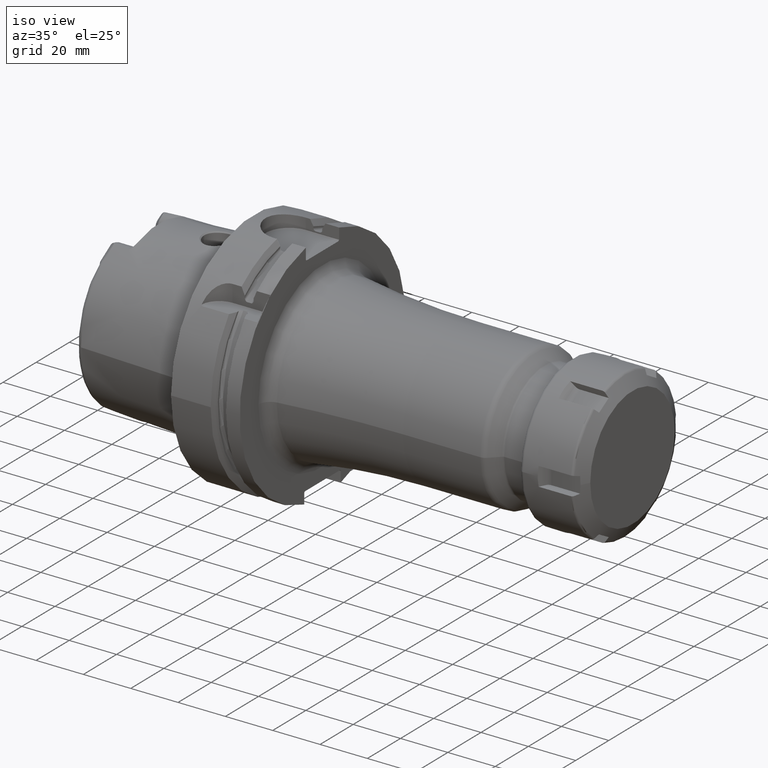
[diagram: clean part render]
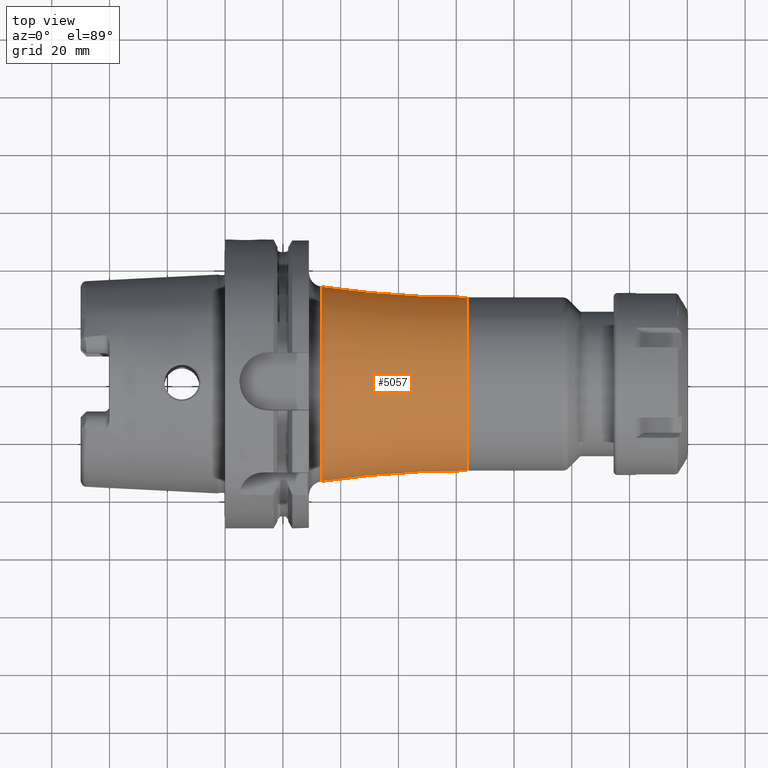
[diagram: tour spotlight — one face highlighted and labeled with its STEP entity id]
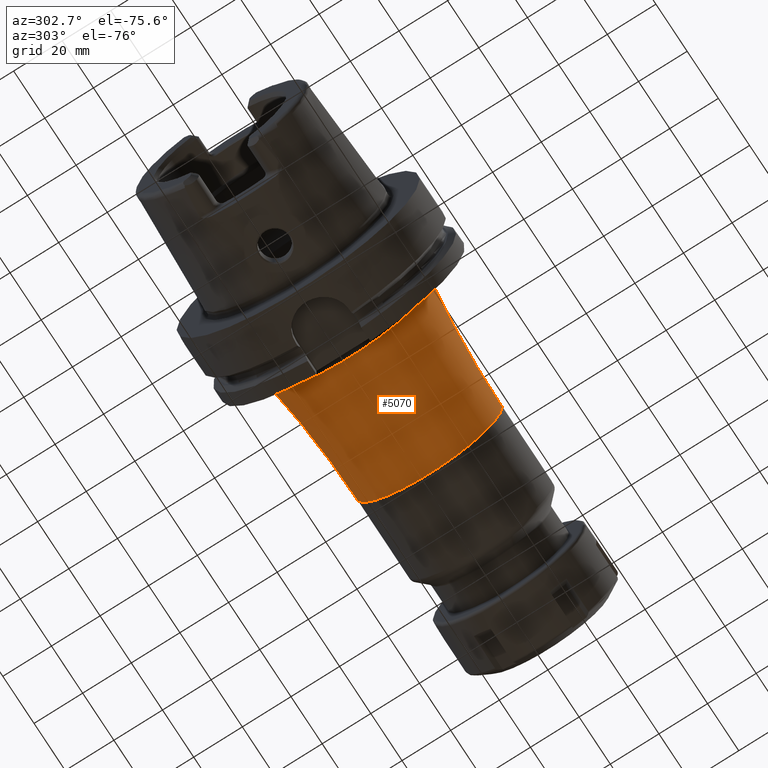
[diagram: tour spotlight — one face highlighted and labeled with its STEP entity id]
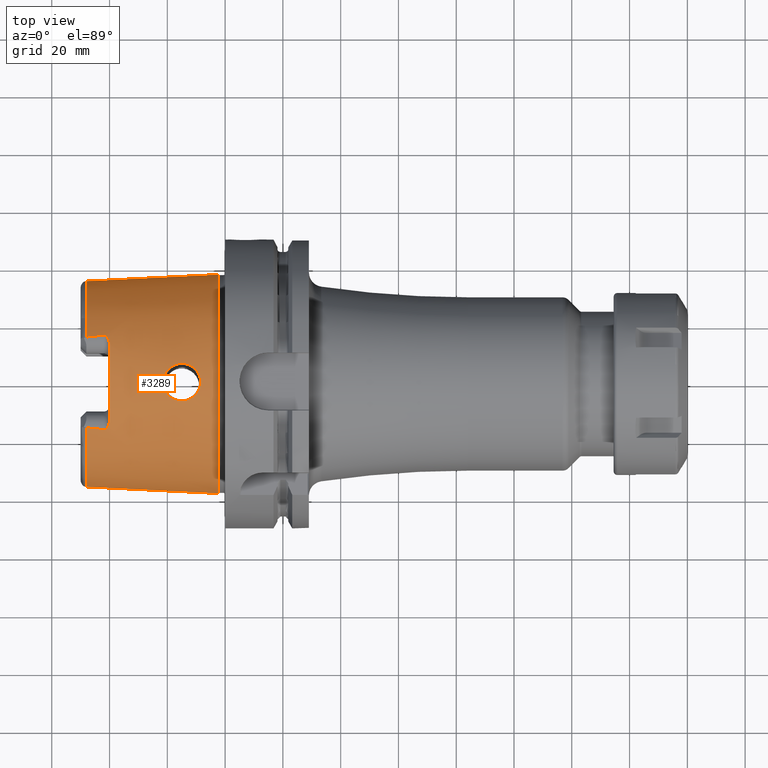
[diagram: tour spotlight — one face highlighted and labeled with its STEP entity id]
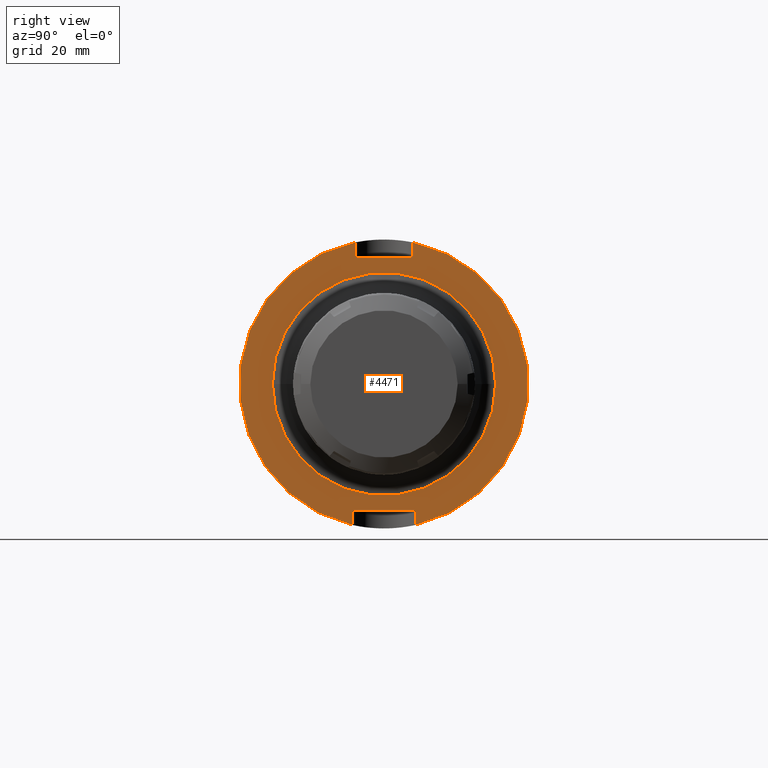
[diagram: tour spotlight — one face highlighted and labeled with its STEP entity id]
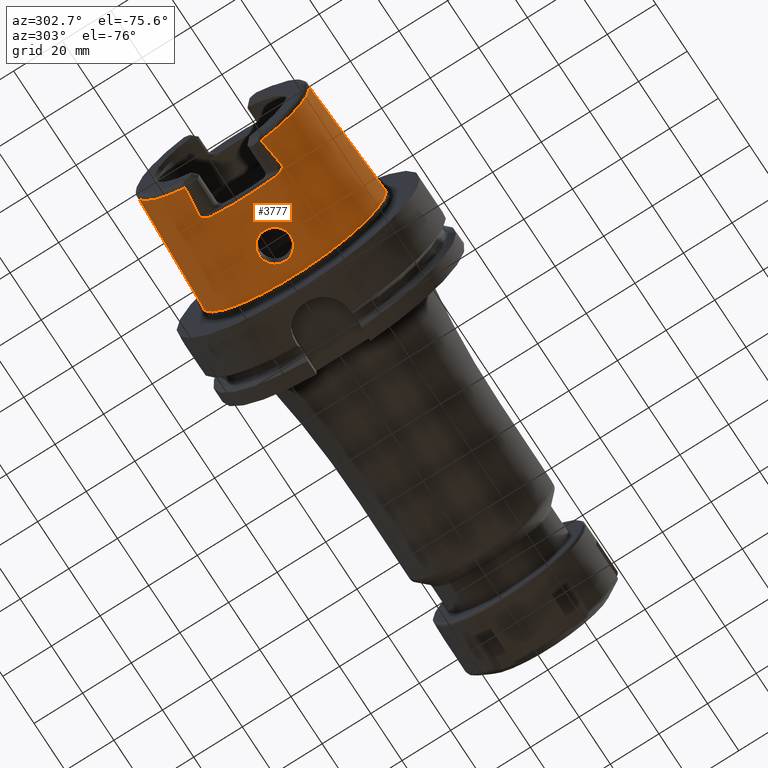
[diagram: tour spotlight — one face highlighted and labeled with its STEP entity id]
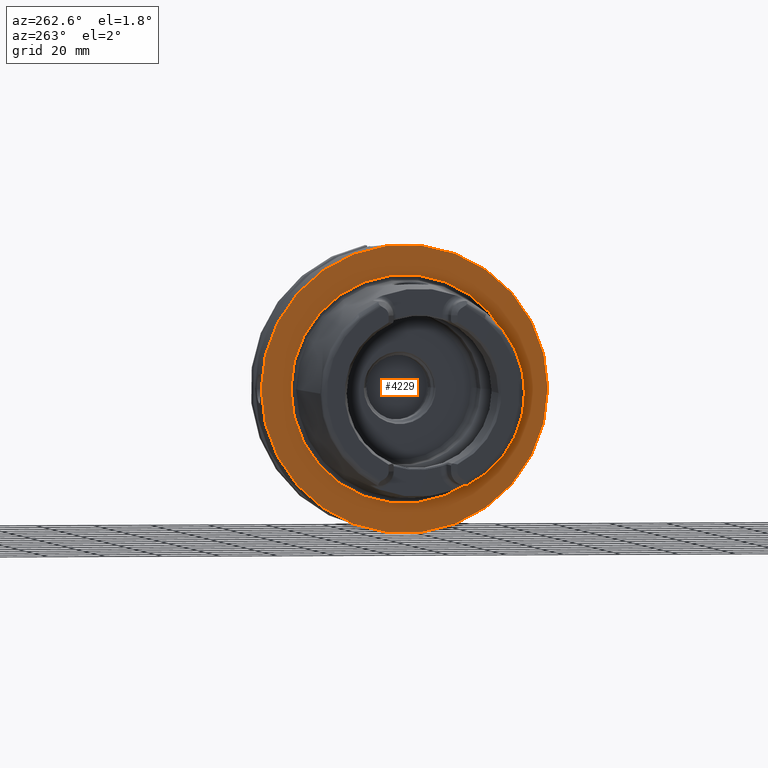
[diagram: tour spotlight — one face highlighted and labeled with its STEP entity id]
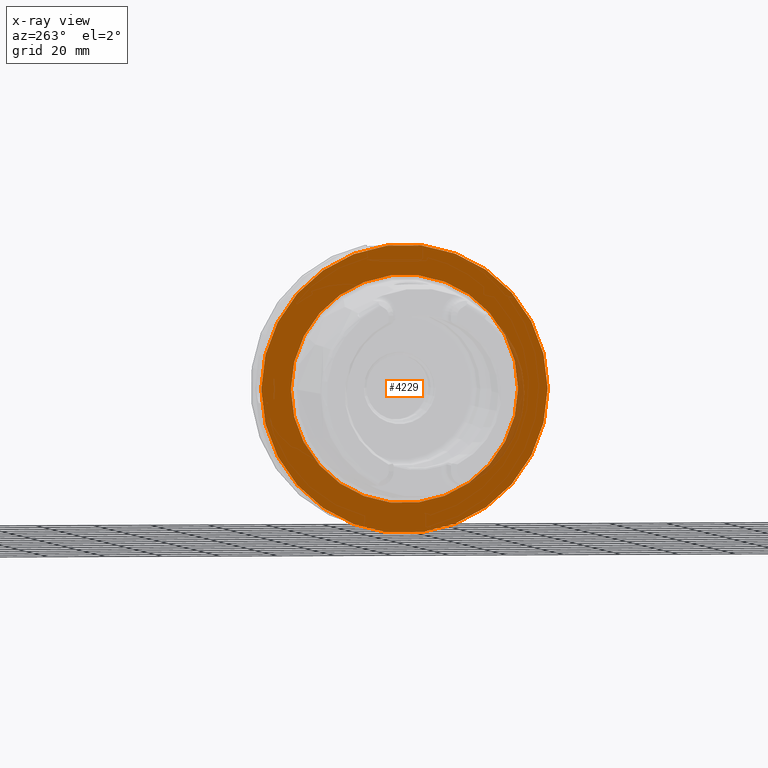
[diagram: x-ray of the same camera — body ghosted, this tour face saturated]
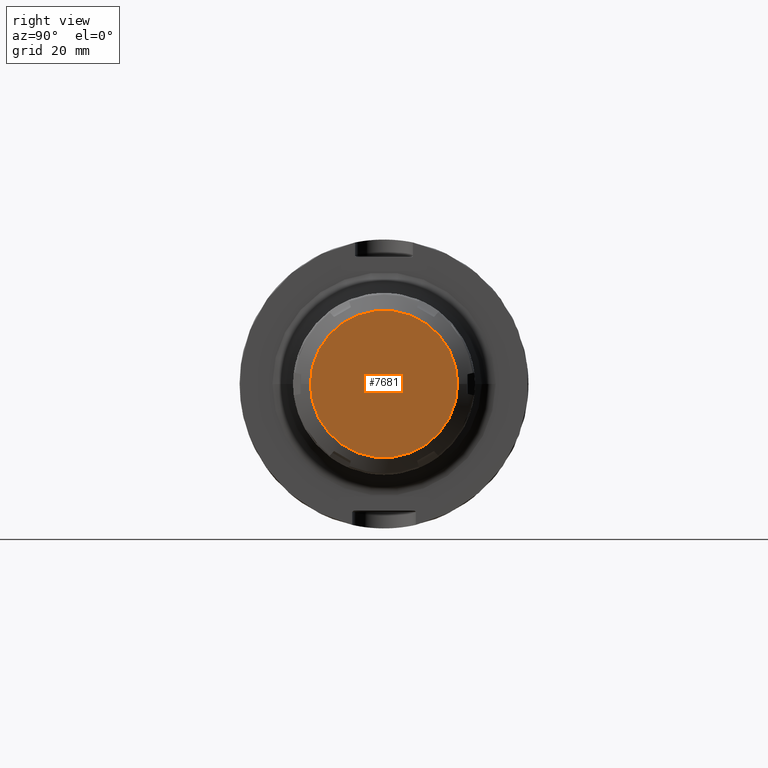
[diagram: tour spotlight — one face highlighted and labeled with its STEP entity id]
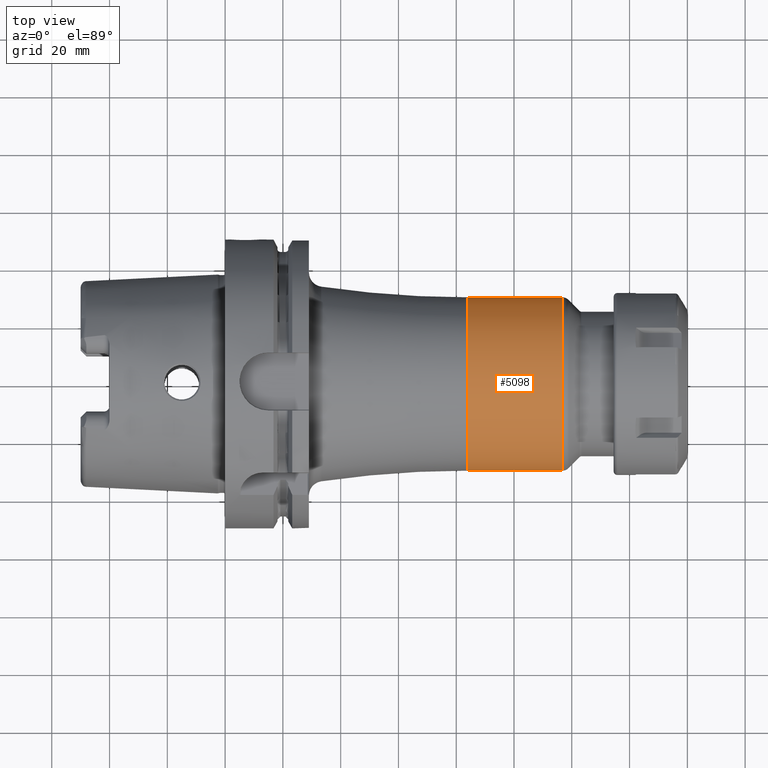
[diagram: tour spotlight — one face highlighted and labeled with its STEP entity id]
A machine part: a face-by-face anatomy tour. The part has 229 B-rep faces; the first image is the clean iso view, then the 8 largest visible faces are spotlighted one at a time (largest first), each with its STEP entity span.

Face 1 — top view, entity #5057. In plain terms, the highlighted toroidal blend (fillet) surface has major radius 380 mm and minor (blend) radius 350 mm.
Definition (entity closure, byte-faithful):
#1792=CARTESIAN_POINT('',(3.327536231884E1,0.E0,0.E0));
#1793=DIRECTION('',(1.E0,0.E0,0.E0));
#1794=DIRECTION('',(0.E0,1.E0,0.E0));
#1795=AXIS2_PLACEMENT_3D('',#1792,#1793,#1794);
#1797=CARTESIAN_POINT('',(8.4E1,3.8E2,4.653657836760E-14));
#1798=DIRECTION('',(0.E0,0.E0,-1.E0));
#1799=DIRECTION('',(0.E0,-1.E0,0.E0));
#1800=AXIS2_PLACEMENT_3D('',#1797,#1798,#1799);
#1807=CARTESIAN_POINT('',(8.4E1,-3.8E2,-9.307315673520E-14));
#1808=DIRECTION('',(0.E0,0.E0,1.E0));
#1809=DIRECTION('',(0.E0,1.E0,0.E0));
#1810=AXIS2_PLACEMENT_3D('',#1807,#1808,#1809);
#1830=CARTESIAN_POINT('',(8.4E1,0.E0,0.E0));
#1831=DIRECTION('',(1.E0,0.E0,0.E0));
#1832=DIRECTION('',(0.E0,1.E0,0.E0));
#1833=AXIS2_PLACEMENT_3D('',#1830,#1831,#1832);
#3240=CARTESIAN_POINT('',(8.4E1,3.E1,0.E0));
#3241=CARTESIAN_POINT('',(8.4E1,-3.E1,0.E0));
#3242=VERTEX_POINT('',#3240);
#3243=VERTEX_POINT('',#3241);
#3244=CARTESIAN_POINT('',(3.327536231884E1,3.369520486699E1,0.E0));
#3245=VERTEX_POINT('',#3244);
#3250=CARTESIAN_POINT('',(3.327536231884E1,-3.369520486699E1,0.E0));
#3251=VERTEX_POINT('',#3250);
#5043=CARTESIAN_POINT('',(8.4E1,0.E0,0.E0));
#5044=DIRECTION('',(1.E0,0.E0,0.E0));
#5045=DIRECTION('',(0.E0,-1.E0,0.E0));
#5046=AXIS2_PLACEMENT_3D('',#5043,#5044,#5045);
#5047=TOROIDAL_SURFACE('',#5046,3.8E2,3.5E2);
#5049=ORIENTED_EDGE('',*,*,#5048,.F.);
#5051=ORIENTED_EDGE('',*,*,#5050,.T.);
#5053=ORIENTED_EDGE('',*,*,#5052,.T.);
#5054=ORIENTED_EDGE('',*,*,#5037,.F.);
#5055=EDGE_LOOP('',(#5049,#5051,#5053,#5054));
#5056=FACE_OUTER_BOUND('',#5055,.F.);
#5057=ADVANCED_FACE('',(#5056),#5047,.F.);
#1796=CIRCLE('',#1795,3.369520486699E1);
#1801=CIRCLE('',#1800,3.5E2);
#1811=CIRCLE('',#1810,3.5E2);
#1834=CIRCLE('',#1833,3.E1);
#5037=EDGE_CURVE('',#3245,#3251,#1796,.T.);
#5048=EDGE_CURVE('',#3242,#3245,#1801,.T.);
#5050=EDGE_CURVE('',#3242,#3243,#1834,.T.);
#5052=EDGE_CURVE('',#3243,#3251,#1811,.T.);

Face 2 — auxiliary view, entity #5070. In plain terms, the highlighted toroidal blend (fillet) surface has major radius 380 mm and minor (blend) radius 350 mm.
Definition (entity closure, byte-faithful):
#1797=CARTESIAN_POINT('',(8.4E1,3.8E2,4.653657836760E-14));
#1798=DIRECTION('',(0.E0,0.E0,-1.E0));
#1799=DIRECTION('',(0.E0,-1.E0,0.E0));
#1800=AXIS2_PLACEMENT_3D('',#1797,#1798,#1799);
#1802=CARTESIAN_POINT('',(3.327536231884E1,0.E0,0.E0));
#1803=DIRECTION('',(1.E0,0.E0,0.E0));
#1804=DIRECTION('',(0.E0,-1.E0,0.E0));
#1805=AXIS2_PLACEMENT_3D('',#1802,#1803,#1804);
#1807=CARTESIAN_POINT('',(8.4E1,-3.8E2,-9.307315673520E-14));
#1808=DIRECTION('',(0.E0,0.E0,1.E0));
#1809=DIRECTION('',(0.E0,1.E0,0.E0));
#1810=AXIS2_PLACEMENT_3D('',#1807,#1808,#1809);
#1812=CARTESIAN_POINT('',(8.4E1,0.E0,0.E0));
#1813=DIRECTION('',(1.E0,0.E0,0.E0));
#1814=DIRECTION('',(0.E0,-1.E0,0.E0));
#1815=AXIS2_PLACEMENT_3D('',#1812,#1813,#1814);
#3240=CARTESIAN_POINT('',(8.4E1,3.E1,0.E0));
#3241=CARTESIAN_POINT('',(8.4E1,-3.E1,0.E0));
#3242=VERTEX_POINT('',#3240);
#3243=VERTEX_POINT('',#3241);
#3244=CARTESIAN_POINT('',(3.327536231884E1,3.369520486699E1,0.E0));
#3245=VERTEX_POINT('',#3244);
#3250=CARTESIAN_POINT('',(3.327536231884E1,-3.369520486699E1,0.E0));
#3251=VERTEX_POINT('',#3250);
#5058=CARTESIAN_POINT('',(8.4E1,0.E0,0.E0));
#5059=DIRECTION('',(1.E0,0.E0,0.E0));
#5060=DIRECTION('',(0.E0,-1.E0,0.E0));
#5061=AXIS2_PLACEMENT_3D('',#5058,#5059,#5060);
#5062=TOROIDAL_SURFACE('',#5061,3.8E2,3.5E2);
#5063=ORIENTED_EDGE('',*,*,#5048,.T.);
#5064=ORIENTED_EDGE('',*,*,#5023,.F.);
#5065=ORIENTED_EDGE('',*,*,#5052,.F.);
#5067=ORIENTED_EDGE('',*,*,#5066,.T.);
#5068=EDGE_LOOP('',(#5063,#5064,#5065,#5067));
#5069=FACE_OUTER_BOUND('',#5068,.F.);
#5070=ADVANCED_FACE('',(#5069),#5062,.F.);
#1801=CIRCLE('',#1800,3.5E2);
#1806=CIRCLE('',#1805,3.369520486699E1);
#1811=CIRCLE('',#1810,3.5E2);
#1816=CIRCLE('',#1815,3.E1);
#5023=EDGE_CURVE('',#3251,#3245,#1806,.T.);
#5048=EDGE_CURVE('',#3242,#3245,#1801,.T.);
#5052=EDGE_CURVE('',#3243,#3251,#1811,.T.);
#5066=EDGE_CURVE('',#3243,#3242,#1816,.T.);

Face 3 — top view, entity #3289. In plain terms, the highlighted conical surface has half-angle 2.868 deg.
Definition (entity closure, byte-faithful):
#2=CARTESIAN_POINT('',(-4.810007448473E1,-1.567653238626E1,3.196E1));
#3=CARTESIAN_POINT('',(-4.743649089753E1,-1.575202511592E1,3.196E1));
#4=CARTESIAN_POINT('',(-4.609985749196E1,-1.590320831227E1,3.196E1));
#5=CARTESIAN_POINT('',(-4.406668280177E1,-1.613055880919E1,3.196E1));
#6=CARTESIAN_POINT('',(-4.269206894520E1,-1.628254944441E1,3.196E1));
#7=CARTESIAN_POINT('',(-4.2E1,-1.635864758744E1,3.196E1));
#9=CARTESIAN_POINT('',(-4.E1,0.E0,0.E0));
#10=DIRECTION('',(1.E0,0.E0,0.E0));
#11=DIRECTION('',(0.E0,3.574556786365E-1,9.339301032789E-1));
#12=AXIS2_PLACEMENT_3D('',#9,#10,#11);
#14=CARTESIAN_POINT('',(-4.2E1,1.635864758744E1,3.196E1));
#15=CARTESIAN_POINT('',(-4.269204070145E1,1.628255255002E1,3.196E1));
#16=CARTESIAN_POINT('',(-4.406661691692E1,1.613056612298E1,3.196E1));
#17=CARTESIAN_POINT('',(-4.609979244919E1,1.590321563865E1,3.196E1));
#18=CARTESIAN_POINT('',(-4.743646302974E1,1.575202828631E1,3.196E1));
#19=CARTESIAN_POINT('',(-4.810007448473E1,1.567653238626E1,3.196E1));
#21=CARTESIAN_POINT('',(-2.5E0,0.E0,0.E0));
#22=DIRECTION('',(1.E0,0.E0,0.E0));
#23=DIRECTION('',(0.E0,1.E0,0.E0));
#24=AXIS2_PLACEMENT_3D('',#21,#22,#23);
#26=CARTESIAN_POINT('',(-2.149938207697E1,5.552926221647E-11,3.693037254664E1));
#27=CARTESIAN_POINT('',(-2.149947810722E1,2.456946967410E-1,3.693041400584E1));
#28=CARTESIAN_POINT('',(-2.146978943123E1,7.663421073483E-1,3.692663668754E1));
#29=CARTESIAN_POINT('',(-2.132902699242E1,1.552723327933E0,3.690919478302E1));
#30=CARTESIAN_POINT('',(-2.108091480959E1,2.342139536845E0,3.687974365394E1));
#31=CARTESIAN_POINT('',(-2.073440330363E1,3.094103832942E0,3.684140909161E1));
#32=CARTESIAN_POINT('',(-2.029456045373E1,3.796705318232E0,3.679744070735E1));
#33=CARTESIAN_POINT('',(-1.976895967621E1,4.437440706102E0,3.675180792921E1));
#34=CARTESIAN_POINT('',(-1.916766491360E1,5.004833501251E0,3.670884542936E1));
#35=CARTESIAN_POINT('',(-1.850089510031E1,5.490460623479E0,3.667275311991E1));
#36=CARTESIAN_POINT('',(-1.777939225152E1,5.887431777884E0,3.664739565010E1));
#37=CARTESIAN_POINT('',(-1.701424609593E1,6.190220322635E0,3.663607600264E1));
#38=CARTESIAN_POINT('',(-1.621758055837E1,6.394419176819E0,3.664131821143E1));
#39=CARTESIAN_POINT('',(-1.539955429301E1,6.497326105441E0,3.666474029556E1));
#40=CARTESIAN_POINT('',(-1.457114975166E1,6.496134002949E0,3.670710840669E1));
#41=CARTESIAN_POINT('',(-1.375127425398E1,6.390454994673E0,3.676745544266E1));
#42=CARTESIAN_POINT('',(-1.294983719070E1,6.181706493026E0,3.684404556607E1));
#43=CARTESIAN_POINT('',(-1.217938970715E1,5.872066509057E0,3.693403258601E1));
#44=CARTESIAN_POINT('',(-1.145343003562E1,5.466036101540E0,3.703341626103E1));
#45=CARTESIAN_POINT('',(-1.078465658031E1,4.970022940288E0,3.713742863004E1));
#46=CARTESIAN_POINT('',(-1.018517891880E1,4.392789013038E0,3.724075525816E1));
#47=CARTESIAN_POINT('',(-9.665388344352E0,3.744837411386E0,3.733802077293E1));
#48=CARTESIAN_POINT('',(-9.234092519568E0,3.038687491876E0,3.742410507514E1));
#49=CARTESIAN_POINT('',(-8.897351452215E0,2.287331206380E0,3.749468513875E1));
#50=CARTESIAN_POINT('',(-8.658527750933E0,1.501792221622E0,3.754652778726E1));
#51=CARTESIAN_POINT('',(-8.527369438248E0,7.337668322055E-1,3.757562813366E1));
#52=CARTESIAN_POINT('',(-8.500550849541E0,2.307484502453E-1,3.758164606668E1));
#53=CARTESIAN_POINT('',(-8.500618238409E0,-3.201212427053E-11,
3.758161093072E1));
#55=CARTESIAN_POINT('',(-8.500618238409E0,-3.201212427053E-11,
3.758161093072E1));
#56=CARTESIAN_POINT('',(-8.500529243712E0,-2.424312186462E-1,3.758165761842E1));
#57=CARTESIAN_POINT('',(-8.529377584627E0,-7.570713761110E-1,3.757517365272E1));
#58=CARTESIAN_POINT('',(-8.666699960505E0,-1.535920192154E0,3.754473037167E1));
#59=CARTESIAN_POINT('',(-8.909712492800E0,-2.320075305293E0,3.749204213674E1));
#60=CARTESIAN_POINT('',(-9.250504215006E0,-3.069650750447E0,3.742074072411E1));
#61=CARTESIAN_POINT('',(-9.685687617568E0,-3.773592271729E0,3.733408895737E1));
#62=CARTESIAN_POINT('',(-1.020908185061E1,-4.418816591912E0,3.723645352953E1));
#63=CARTESIAN_POINT('',(-1.081164311031E1,-4.992724782849E0,3.713300191729E1));
#64=CARTESIAN_POINT('',(-1.148289197008E1,-5.484961003997E0,3.702910971345E1));
#65=CARTESIAN_POINT('',(-1.221077052890E1,-5.886958600290E0,3.693005620282E1));
#66=CARTESIAN_POINT('',(-1.298272715167E1,-6.192450910075E0,3.684056019680E1));
#67=CARTESIAN_POINT('',(-1.378543745730E1,-6.397007236175E0,3.676457229973E1));
#68=CARTESIAN_POINT('',(-1.460657276070E1,-6.498354658048E0,3.670491060908E1));
#69=CARTESIAN_POINT('',(-1.543495839616E1,-6.495033034286E0,3.666334714016E1));
#70=CARTESIAN_POINT('',(-1.625254215847E1,-6.387680563827E0,3.664072182306E1));
#71=CARTESIAN_POINT('',(-1.704827269515E1,-6.179075952149E0,3.663623858926E1));
#72=CARTESIAN_POINT('',(-1.781166108930E1,-5.872129661425E0,3.664822647582E1));
#73=CARTESIAN_POINT('',(-1.853088883617E1,-5.471276112331E0,3.667411627299E1));
#74=CARTESIAN_POINT('',(-1.919496044775E1,-4.982042332370E0,3.671058230959E1));
#75=CARTESIAN_POINT('',(-1.979312959260E1,-4.411388967116E0,3.675374151488E1));
#76=CARTESIAN_POINT('',(-2.031520136204E1,-3.767815751250E0,3.679938652908E1));
#77=CARTESIAN_POINT('',(-2.075116173440E1,-3.062888856216E0,3.684318827995E1));
#78=CARTESIAN_POINT('',(-2.109352623852E1,-2.309166702590E0,3.688120055672E1));
#79=CARTESIAN_POINT('',(-2.133733752753E1,-1.518482485311E0,3.691020909579E1));
#80=CARTESIAN_POINT('',(-2.147183542910E1,-7.429704319279E-1,3.692690027450E1));
#81=CARTESIAN_POINT('',(-2.149945558988E1,-2.340112752743E-1,3.693040395664E1));
#82=CARTESIAN_POINT('',(-2.149938207697E1,5.552926221647E-11,3.693037254664E1));
#248=CARTESIAN_POINT('',(-4.044615405310E1,1.501E1,3.270080868281E1));
#249=CARTESIAN_POINT('',(-4.036716971646E1,1.480714421409E1,3.279827559643E1));
#250=CARTESIAN_POINT('',(-4.023151678165E1,1.441318283024E1,3.298193753654E1));
#251=CARTESIAN_POINT('',(-4.009402199227E1,1.386111148947E1,3.322490472400E1));
#252=CARTESIAN_POINT('',(-4.001617021866E1,1.334582492697E1,3.343918234932E1));
#253=CARTESIAN_POINT('',(-4.E1,1.302441475567E1,3.356551938374E1));
#254=CARTESIAN_POINT('',(-4.E1,1.286965552579E1,3.362475247340E1));
#312=CARTESIAN_POINT('',(-4.810007448473E1,0.E0,0.E0));
#313=DIRECTION('',(1.E0,0.E0,0.E0));
#314=DIRECTION('',(0.E0,1.E0,0.E0));
#315=AXIS2_PLACEMENT_3D('',#312,#313,#314);
#387=CARTESIAN_POINT('',(-4.810007448473E1,0.E0,0.E0));
#388=DIRECTION('',(1.E0,0.E0,0.E0));
#389=DIRECTION('',(0.E0,-4.403806547453E-1,8.978111599474E-1));
#390=AXIS2_PLACEMENT_3D('',#387,#388,#389);
#561=DIRECTION('',(-9.987473526255E-1,5.003724236654E-2,0.E0));
#562=VECTOR('',#561,4.565726694029E1);
#563=CARTESIAN_POINT('',(-2.5E0,-3.788225E1,0.E0));
#564=LINE('',#563,#562);
#570=DIRECTION('',(-9.987473526255E-1,-5.003724236654E-2,0.E0));
#571=VECTOR('',#570,4.565726694029E1);
#572=CARTESIAN_POINT('',(-2.5E0,3.788225E1,0.E0));
#573=LINE('',#572,#571);
#2663=CARTESIAN_POINT('',(-4.E1,-1.286965552579E1,3.362475247340E1));
#2664=CARTESIAN_POINT('',(-4.E1,-1.302441541648E1,3.356551913082E1));
#2665=CARTESIAN_POINT('',(-4.001617018251E1,-1.334582535629E1,
3.343918219674E1));
#2666=CARTESIAN_POINT('',(-4.009402242674E1,-1.386111200207E1,
3.322490442026E1));
#2667=CARTESIAN_POINT('',(-4.023151276023E1,-1.441316885171E1,
3.298194383001E1));
#2668=CARTESIAN_POINT('',(-4.036716744567E1,-1.480713838201E1,
3.279827839859E1));
#2669=CARTESIAN_POINT('',(-4.044615405310E1,-1.501E1,3.270080868281E1));
#2745=CARTESIAN_POINT('',(-4.044615405310E1,-1.501E1,3.270080868281E1));
#2746=CARTESIAN_POINT('',(-4.048970886745E1,-1.512186200292E1,
3.264706190833E1));
#2747=CARTESIAN_POINT('',(-4.058203784729E1,-1.533106618308E1,
3.254453864538E1));
#2748=CARTESIAN_POINT('',(-4.073432021554E1,-1.560191666355E1,
3.240695208273E1));
#2749=CARTESIAN_POINT('',(-4.089735125525E1,-1.582886077686E1,
3.228748605874E1));
#2750=CARTESIAN_POINT('',(-4.106769081077E1,-1.601331012900E1,
3.218678608847E1));
#2751=CARTESIAN_POINT('',(-4.125393253486E1,-1.616457753287E1,
3.210056649743E1));
#2752=CARTESIAN_POINT('',(-4.144626840802E1,-1.627335249792E1,
3.203468630644E1));
#2753=CARTESIAN_POINT('',(-4.163743535609E1,-1.633966611997E1,
3.199012198327E1));
#2754=CARTESIAN_POINT('',(-4.181861360320E1,-1.636784997544E1,
3.196549826812E1));
#2755=CARTESIAN_POINT('',(-4.194004005827E1,-1.636524063030E1,3.196E1));
#2756=CARTESIAN_POINT('',(-4.2E1,-1.635864758744E1,3.196E1));
#2766=CARTESIAN_POINT('',(-4.2E1,1.635864758744E1,3.196E1));
#2767=CARTESIAN_POINT('',(-4.193871342572E1,1.636538650345E1,3.196E1));
#2768=CARTESIAN_POINT('',(-4.181450390691E1,1.636814761969E1,3.196557762379E1));
#2769=CARTESIAN_POINT('',(-4.162243507007E1,1.633619695788E1,3.199274042675E1));
#2770=CARTESIAN_POINT('',(-4.143278453244E1,1.626680995517E1,3.203876886227E1));
#2771=CARTESIAN_POINT('',(-4.124494122381E1,1.615802805146E1,3.210436522250E1));
#2772=CARTESIAN_POINT('',(-4.106242535143E1,1.600818739776E1,3.218962850171E1));
#2773=CARTESIAN_POINT('',(-4.089248890939E1,1.582281513116E1,3.229072139863E1));
#2774=CARTESIAN_POINT('',(-4.073124146543E1,1.559684012110E1,3.240956146553E1));
#2775=CARTESIAN_POINT('',(-4.058058611384E1,1.532793070389E1,3.254608698749E1));
#2776=CARTESIAN_POINT('',(-4.048925691866E1,1.512070126105E1,3.264761961452E1));
#2777=CARTESIAN_POINT('',(-4.044615405310E1,1.501E1,3.270080868281E1));
#2799=CARTESIAN_POINT('',(-2.5E0,3.788225E1,0.E0));
#2800=CARTESIAN_POINT('',(-2.5E0,-3.788225E1,0.E0));
#2801=VERTEX_POINT('',#2799);
#2802=VERTEX_POINT('',#2800);
#2803=CARTESIAN_POINT('',(-4.810007448473E1,3.559768626831E1,0.E0));
#2804=VERTEX_POINT('',#2803);
#2805=CARTESIAN_POINT('',(-4.810007448473E1,-3.559768626831E1,0.E0));
#2806=VERTEX_POINT('',#2805);
#2843=CARTESIAN_POINT('',(-4.810007448473E1,1.567653238626E1,3.196E1));
#2844=VERTEX_POINT('',#2843);
#2845=CARTESIAN_POINT('',(-4.810007448473E1,-1.567653238626E1,3.196E1));
#2846=VERTEX_POINT('',#2845);
#2855=CARTESIAN_POINT('',(-4.E1,1.286965552579E1,3.362475247340E1));
#2856=VERTEX_POINT('',#2855);
#2859=CARTESIAN_POINT('',(-4.2E1,1.635864758744E1,3.196E1));
#2860=VERTEX_POINT('',#2859);
#2861=CARTESIAN_POINT('',(-4.E1,-1.286965552579E1,3.362475247340E1));
#2862=VERTEX_POINT('',#2861);
#2865=CARTESIAN_POINT('',(-4.2E1,-1.635864758744E1,3.196E1));
#2866=VERTEX_POINT('',#2865);
#2867=VERTEX_POINT('',#2777);
#2868=VERTEX_POINT('',#2745);
#3008=VERTEX_POINT('',#26);
#3009=VERTEX_POINT('',#53);
#3252=CARTESIAN_POINT('',(-2.530003724237E1,0.E0,0.E0));
#3253=DIRECTION('',(1.E0,0.E0,0.E0));
#3254=DIRECTION('',(0.E0,-1.E0,0.E0));
#3255=AXIS2_PLACEMENT_3D('',#3252,#3253,#3254);
#3256=CONICAL_SURFACE('',#3255,3.673996813416E1,2.868120487315E0);
#3258=ORIENTED_EDGE('',*,*,#3257,.T.);
#3260=ORIENTED_EDGE('',*,*,#3259,.F.);
#3262=ORIENTED_EDGE('',*,*,#3261,.F.);
#3264=ORIENTED_EDGE('',*,*,#3263,.F.);
#3266=ORIENTED_EDGE('',*,*,#3265,.F.);
#3268=ORIENTED_EDGE('',*,*,#3267,.F.);
#3270=ORIENTED_EDGE('',*,*,#3269,.T.);
#3272=ORIENTED_EDGE('',*,*,#3271,.F.);
#3274=ORIENTED_EDGE('',*,*,#3273,.F.);
#3276=ORIENTED_EDGE('',*,*,#3275,.T.);
#3278=ORIENTED_EDGE('',*,*,#3277,.T.);
#3280=ORIENTED_EDGE('',*,*,#3279,.F.);
#3281=EDGE_LOOP('',(#3258,#3260,#3262,#3264,#3266,#3268,#3270,#3272,#3274,#3276,
#3278,#3280));
#3282=FACE_OUTER_BOUND('',#3281,.F.);
#3284=ORIENTED_EDGE('',*,*,#3283,.F.);
#3286=ORIENTED_EDGE('',*,*,#3285,.F.);
#3287=EDGE_LOOP('',(#3284,#3286));
#3288=FACE_BOUND('',#3287,.F.);
#3289=ADVANCED_FACE('',(#3282,#3288),#3256,.T.);
#8=B_SPLINE_CURVE_WITH_KNOTS('',3,(#2,#3,#4,#5,#6,#7),.UNSPECIFIED.,.F.,.F.,(4,
1,1,4),(0.E0,3.333333333333E-1,6.666666666667E-1,1.E0),.UNSPECIFIED.);
#13=CIRCLE('',#12,3.60035E1);
#20=B_SPLINE_CURVE_WITH_KNOTS('',3,(#14,#15,#16,#17,#18,#19),.UNSPECIFIED.,.F.,
.F.,(4,1,1,4),(0.E0,3.333333333333E-1,6.666666666667E-1,1.E0),.UNSPECIFIED.);
#25=CIRCLE('',#24,3.788225E1);
#54=B_SPLINE_CURVE_WITH_KNOTS('',3,(#26,#27,#28,#29,#30,#31,#32,#33,#34,#35,#36,
#37,#38,#39,#40,#41,#42,#43,#44,#45,#46,#47,#48,#49,#50,#51,#52,#53),
.UNSPECIFIED.,.F.,.F.,(4,1,1,1,1,1,1,1,1,1,1,1,1,1,1,1,1,1,1,1,1,1,1,1,1,4),(
0.E0,3.626792904996E-2,7.667308714875E-2,1.170782452475E-1,1.574834033463E-1,
1.978885614451E-1,2.382937195439E-1,2.786988776427E-1,3.191040357415E-1,
3.595091938403E-1,3.999143519391E-1,4.403195100379E-1,4.807246681367E-1,
5.211298262355E-1,5.615349843343E-1,6.019401424331E-1,6.423453005319E-1,
6.827504586307E-1,7.231556167295E-1,7.635607748283E-1,8.039659329271E-1,
8.443710910259E-1,8.847762491247E-1,9.251814072235E-1,9.655865653223E-1,1.E0),
.UNSPECIFIED.);
#83=B_SPLINE_CURVE_WITH_KNOTS('',3,(#55,#56,#57,#58,#59,#60,#61,#62,#63,#64,#65,
#66,#67,#68,#69,#70,#71,#72,#73,#74,#75,#76,#77,#78,#79,#80,#81,#82),
.UNSPECIFIED.,.F.,.F.,(4,1,1,1,1,1,1,1,1,1,1,1,1,1,1,1,1,1,1,1,1,1,1,1,1,4),(
0.E0,3.618329534544E-2,7.658712835106E-2,1.169909613567E-1,1.573947943623E-1,
1.977986273679E-1,2.382024603735E-1,2.786062933791E-1,3.190101263848E-1,
3.594139593904E-1,3.998177923960E-1,4.402216254016E-1,4.806254584072E-1,
5.210292914128E-1,5.614331244184E-1,6.018369574241E-1,6.422407904297E-1,
6.826446234353E-1,7.230484564409E-1,7.634522894465E-1,8.038561224521E-1,
8.442599554578E-1,8.846637884634E-1,9.250676214690E-1,9.654714544746E-1,1.E0),
.UNSPECIFIED.);
#255=B_SPLINE_CURVE_WITH_KNOTS('',3,(#248,#249,#250,#251,#252,#253,#254),
.UNSPECIFIED.,.F.,.F.,(4,1,1,1,4),(0.E0,2.5E-1,5.E-1,7.5E-1,1.E0),
.UNSPECIFIED.);
#316=CIRCLE('',#315,3.559768626831E1);
#391=CIRCLE('',#390,3.559768626831E1);
#2670=B_SPLINE_CURVE_WITH_KNOTS('',3,(#2663,#2664,#2665,#2666,#2667,#2668,
#2669),.UNSPECIFIED.,.F.,.F.,(4,1,1,1,4),(0.E0,2.5E-1,5.E-1,7.5E-1,1.E0),
.UNSPECIFIED.);
#2757=B_SPLINE_CURVE_WITH_KNOTS('',3,(#2745,#2746,#2747,#2748,#2749,#2750,#2751,
#2752,#2753,#2754,#2755,#2756),.UNSPECIFIED.,.F.,.F.,(4,1,1,1,1,1,1,1,1,4),
(0.E0,1.111111111111E-1,2.222222222222E-1,3.333333333333E-1,4.444444444444E-1,
5.555555555556E-1,6.666666666667E-1,7.777777777778E-1,8.888888888889E-1,1.E0),
.UNSPECIFIED.);
#2778=B_SPLINE_CURVE_WITH_KNOTS('',3,(#2766,#2767,#2768,#2769,#2770,#2771,#2772,
#2773,#2774,#2775,#2776,#2777),.UNSPECIFIED.,.F.,.F.,(4,1,1,1,1,1,1,1,1,4),
(0.E0,1.111111111111E-1,2.222222222222E-1,3.333333333333E-1,4.444444444444E-1,
5.555555555556E-1,6.666666666667E-1,7.777777777778E-1,8.888888888889E-1,1.E0),
.UNSPECIFIED.);
#3257=EDGE_CURVE('',#2846,#2866,#8,.T.);
#3259=EDGE_CURVE('',#2868,#2866,#2757,.T.);
#3261=EDGE_CURVE('',#2862,#2868,#2670,.T.);
#3263=EDGE_CURVE('',#2856,#2862,#13,.T.);
#3265=EDGE_CURVE('',#2867,#2856,#255,.T.);
#3267=EDGE_CURVE('',#2860,#2867,#2778,.T.);
#3269=EDGE_CURVE('',#2860,#2844,#20,.T.);
#3271=EDGE_CURVE('',#2804,#2844,#316,.T.);
#3273=EDGE_CURVE('',#2801,#2804,#573,.T.);
#3275=EDGE_CURVE('',#2801,#2802,#25,.T.);
#3277=EDGE_CURVE('',#2802,#2806,#564,.T.);
#3279=EDGE_CURVE('',#2846,#2806,#391,.T.);
#3283=EDGE_CURVE('',#3008,#3009,#54,.T.);
#3285=EDGE_CURVE('',#3009,#3008,#83,.T.);

Face 4 — right view, entity #4471. In plain terms, the highlighted planar face has unit normal (1, 0, 0).
Definition (entity closure, byte-faithful):
#1065=CARTESIAN_POINT('',(2.9E1,0.E0,0.E0));
#1066=DIRECTION('',(1.E0,0.E0,0.E0));
#1067=DIRECTION('',(0.E0,2.2042E-1,-9.754050561690E-1));
#1068=AXIS2_PLACEMENT_3D('',#1065,#1066,#1067);
#1083=CARTESIAN_POINT('',(2.9E1,0.E0,0.E0));
#1084=DIRECTION('',(1.E0,0.E0,0.E0));
#1085=DIRECTION('',(0.E0,-2.0042E-1,9.797100711945E-1));
#1086=AXIS2_PLACEMENT_3D('',#1083,#1084,#1085);
#1194=DIRECTION('',(0.E0,7.071067811865E-1,-7.071067811866E-1));
#1195=VECTOR('',#1194,5.656854249492E-1);
#1196=CARTESIAN_POINT('',(2.9E1,1.0621E1,-4.39E1));
#1197=LINE('',#1196,#1195);
#1202=DIRECTION('',(0.E0,0.E0,1.E0));
#1203=VECTOR('',#1202,4.470252808449E0);
#1204=CARTESIAN_POINT('',(2.9E1,1.1021E1,-4.877025280845E1));
#1205=LINE('',#1204,#1203);
#1206=DIRECTION('',(0.E0,-1.E0,0.E0));
#1207=VECTOR('',#1206,2.1242E1);
#1208=CARTESIAN_POINT('',(2.9E1,1.0621E1,-4.39E1));
#1209=LINE('',#1208,#1207);
#1210=DIRECTION('',(0.E0,0.E0,1.E0));
#1211=VECTOR('',#1210,4.470252808449E0);
#1212=CARTESIAN_POINT('',(2.9E1,-1.1021E1,-4.877025280845E1));
#1213=LINE('',#1212,#1211);
#1214=DIRECTION('',(0.E0,0.E0,-1.E0));
#1215=VECTOR('',#1214,4.685503559727E0);
#1216=CARTESIAN_POINT('',(2.9E1,-1.0021E1,4.898550355973E1));
#1217=LINE('',#1216,#1215);
#1218=DIRECTION('',(0.E0,1.E0,0.E0));
#1219=VECTOR('',#1218,1.9242E1);
#1220=CARTESIAN_POINT('',(2.9E1,-9.621E0,4.39E1));
#1221=LINE('',#1220,#1219);
#1222=DIRECTION('',(0.E0,0.E0,-1.E0));
#1223=VECTOR('',#1222,4.685503559727E0);
#1224=CARTESIAN_POINT('',(2.9E1,1.0021E1,4.898550355973E1));
#1225=LINE('',#1224,#1223);
#1226=CARTESIAN_POINT('',(2.9E1,0.E0,0.E0));
#1227=DIRECTION('',(1.E0,0.E0,0.E0));
#1228=DIRECTION('',(0.E0,-1.E0,-1.992260273123E-14));
#1229=AXIS2_PLACEMENT_3D('',#1226,#1227,#1228);
#1231=CARTESIAN_POINT('',(2.9E1,0.E0,0.E0));
#1232=DIRECTION('',(1.E0,0.E0,0.E0));
#1233=DIRECTION('',(0.E0,1.E0,1.980013805131E-14));
#1234=AXIS2_PLACEMENT_3D('',#1231,#1232,#1233);
#1253=DIRECTION('',(0.E0,7.071067811865E-1,7.071067811866E-1));
#1254=VECTOR('',#1253,5.656854249492E-1);
#1255=CARTESIAN_POINT('',(2.9E1,-1.1021E1,-4.43E1));
#1256=LINE('',#1255,#1254);
#1707=DIRECTION('',(0.E0,-7.071067811865E-1,-7.071067811865E-1));
#1708=VECTOR('',#1707,5.656854249492E-1);
#1709=CARTESIAN_POINT('',(2.9E1,1.0021E1,4.43E1));
#1710=LINE('',#1709,#1708);
#1724=DIRECTION('',(0.E0,-7.071067811865E-1,7.071067811866E-1));
#1725=VECTOR('',#1724,5.656854249492E-1);
#1726=CARTESIAN_POINT('',(2.9E1,-9.621E0,4.39E1));
#1727=LINE('',#1726,#1725);
#3032=CARTESIAN_POINT('',(2.9E1,1.0021E1,4.43E1));
#3033=CARTESIAN_POINT('',(2.9E1,9.621E0,4.39E1));
#3034=VERTEX_POINT('',#3032);
#3035=VERTEX_POINT('',#3033);
#3036=CARTESIAN_POINT('',(2.9E1,-9.621E0,4.39E1));
#3037=CARTESIAN_POINT('',(2.9E1,-1.0021E1,4.43E1));
#3038=VERTEX_POINT('',#3036);
#3039=VERTEX_POINT('',#3037);
#3040=CARTESIAN_POINT('',(2.9E1,-1.1021E1,-4.43E1));
#3041=CARTESIAN_POINT('',(2.9E1,-1.0621E1,-4.39E1));
#3042=VERTEX_POINT('',#3040);
#3043=VERTEX_POINT('',#3041);
#3044=CARTESIAN_POINT('',(2.9E1,1.0621E1,-4.39E1));
#3045=CARTESIAN_POINT('',(2.9E1,1.1021E1,-4.43E1));
#3046=VERTEX_POINT('',#3044);
#3047=VERTEX_POINT('',#3045);
#3130=CARTESIAN_POINT('',(2.9E1,-1.0021E1,4.898550355973E1));
#3131=CARTESIAN_POINT('',(2.9E1,-1.1021E1,-4.877025280845E1));
#3132=VERTEX_POINT('',#3130);
#3133=VERTEX_POINT('',#3131);
#3134=CARTESIAN_POINT('',(2.9E1,1.1021E1,-4.877025280845E1));
#3135=CARTESIAN_POINT('',(2.9E1,1.0021E1,4.898550355973E1));
#3136=VERTEX_POINT('',#3134);
#3137=VERTEX_POINT('',#3135);
#3246=CARTESIAN_POINT('',(2.9E1,-3.864241622603E1,-7.698575070459E-13));
#3247=CARTESIAN_POINT('',(2.9E1,3.864241622603E1,7.651251759117E-13));
#3248=VERTEX_POINT('',#3246);
#3249=VERTEX_POINT('',#3247);
#4438=CARTESIAN_POINT('',(2.9E1,0.E0,0.E0));
#4439=DIRECTION('',(1.E0,0.E0,0.E0));
#4440=DIRECTION('',(0.E0,-1.E0,0.E0));
#4441=AXIS2_PLACEMENT_3D('',#4438,#4439,#4440);
#4442=PLANE('',#4441);
#4443=ORIENTED_EDGE('',*,*,#4400,.T.);
#4444=ORIENTED_EDGE('',*,*,#4428,.F.);
#4446=ORIENTED_EDGE('',*,*,#4445,.T.);
#4448=ORIENTED_EDGE('',*,*,#4447,.F.);
#4450=ORIENTED_EDGE('',*,*,#4449,.F.);
#4451=ORIENTED_EDGE('',*,*,#4358,.F.);
#4453=ORIENTED_EDGE('',*,*,#4452,.T.);
#4455=ORIENTED_EDGE('',*,*,#4454,.F.);
#4457=ORIENTED_EDGE('',*,*,#4456,.T.);
#4459=ORIENTED_EDGE('',*,*,#4458,.F.);
#4461=ORIENTED_EDGE('',*,*,#4460,.F.);
#4462=ORIENTED_EDGE('',*,*,#4333,.F.);
#4463=EDGE_LOOP('',(#4443,#4444,#4446,#4448,#4450,#4451,#4453,#4455,#4457,#4459,
#4461,#4462));
#4464=FACE_OUTER_BOUND('',#4463,.F.);
#4466=ORIENTED_EDGE('',*,*,#4465,.T.);
#4468=ORIENTED_EDGE('',*,*,#4467,.T.);
#4469=EDGE_LOOP('',(#4466,#4468));
#4470=FACE_BOUND('',#4469,.F.);
#4471=ADVANCED_FACE('',(#4464,#4470),#4442,.T.);
#1069=CIRCLE('',#1068,5.E1);
#1087=CIRCLE('',#1086,5.E1);
#1230=CIRCLE('',#1229,3.864241622603E1);
#1235=CIRCLE('',#1234,3.864241622603E1);
#4333=EDGE_CURVE('',#3136,#3137,#1069,.T.);
#4358=EDGE_CURVE('',#3132,#3133,#1087,.T.);
#4400=EDGE_CURVE('',#3136,#3047,#1205,.T.);
#4428=EDGE_CURVE('',#3046,#3047,#1197,.T.);
#4445=EDGE_CURVE('',#3046,#3043,#1209,.T.);
#4447=EDGE_CURVE('',#3042,#3043,#1256,.T.);
#4449=EDGE_CURVE('',#3133,#3042,#1213,.T.);
#4452=EDGE_CURVE('',#3132,#3039,#1217,.T.);
#4454=EDGE_CURVE('',#3038,#3039,#1727,.T.);
#4456=EDGE_CURVE('',#3038,#3035,#1221,.T.);
#4458=EDGE_CURVE('',#3034,#3035,#1710,.T.);
#4460=EDGE_CURVE('',#3137,#3034,#1225,.T.);
#4465=EDGE_CURVE('',#3248,#3249,#1230,.T.);
#4467=EDGE_CURVE('',#3249,#3248,#1235,.T.);

Face 5 — auxiliary view, entity #3777. In plain terms, the highlighted conical surface has half-angle 2.868 deg.
Definition (entity closure, byte-faithful):
#307=CARTESIAN_POINT('',(-4.810007448473E1,0.E0,0.E0));
#308=DIRECTION('',(-1.E0,0.E0,0.E0));
#309=DIRECTION('',(0.E0,1.E0,0.E0));
#310=AXIS2_PLACEMENT_3D('',#307,#308,#309);
#392=CARTESIAN_POINT('',(-4.810007448473E1,0.E0,0.E0));
#393=DIRECTION('',(-1.E0,0.E0,0.E0));
#394=DIRECTION('',(0.E0,-4.403806547453E-1,-8.978111599474E-1));
#395=AXIS2_PLACEMENT_3D('',#392,#393,#394);
#542=CARTESIAN_POINT('',(-4.810007448473E1,1.567653238626E1,-3.196E1));
#543=CARTESIAN_POINT('',(-4.691253354608E1,1.581163323682E1,-3.196E1));
#544=CARTESIAN_POINT('',(-4.450693295241E1,1.608249060017E1,-3.196E1));
#545=CARTESIAN_POINT('',(-4.080822205394E1,1.649061651786E1,-3.196E1));
#546=CARTESIAN_POINT('',(-3.827971844003E1,1.676420418060E1,-3.196E1));
#547=CARTESIAN_POINT('',(-3.7E1,1.690135066910E1,-3.196E1));
#549=CARTESIAN_POINT('',(-3.5E1,0.E0,0.E0));
#550=DIRECTION('',(1.E0,0.E0,0.E0));
#551=DIRECTION('',(0.E0,-3.659355944317E-1,-9.306401779033E-1));
#552=AXIS2_PLACEMENT_3D('',#549,#550,#551);
#554=CARTESIAN_POINT('',(-3.7E1,-1.690135066910E1,-3.196E1));
#555=CARTESIAN_POINT('',(-3.827957528302E1,-1.676421952263E1,-3.196E1));
#556=CARTESIAN_POINT('',(-4.080788819039E1,-1.649065289085E1,-3.196E1));
#557=CARTESIAN_POINT('',(-4.450660828452E1,-1.608252688744E1,-3.196E1));
#558=CARTESIAN_POINT('',(-4.691239447940E1,-1.581164905777E1,-3.196E1));
#559=CARTESIAN_POINT('',(-4.810007448473E1,-1.567653238626E1,-3.196E1));
#561=DIRECTION('',(-9.987473526255E-1,5.003724236654E-2,0.E0));
#562=VECTOR('',#561,4.565726694029E1);
#563=CARTESIAN_POINT('',(-2.5E0,-3.788225E1,0.E0));
#564=LINE('',#563,#562);
#565=CARTESIAN_POINT('',(-2.5E0,0.E0,0.E0));
#566=DIRECTION('',(1.E0,0.E0,0.E0));
#567=DIRECTION('',(0.E0,-1.E0,0.E0));
#568=AXIS2_PLACEMENT_3D('',#565,#566,#567);
#570=DIRECTION('',(-9.987473526255E-1,-5.003724236654E-2,0.E0));
#571=VECTOR('',#570,4.565726694029E1);
#572=CARTESIAN_POINT('',(-2.5E0,3.788225E1,0.E0));
#573=LINE('',#572,#571);
#574=CARTESIAN_POINT('',(-8.500618228215E0,-4.475741567310E-11,
-3.758161092103E1));
#575=CARTESIAN_POINT('',(-8.500550626629E0,2.307123186996E-1,
-3.758164609326E1));
#576=CARTESIAN_POINT('',(-8.527361627144E0,7.336655055656E-1,
-3.757562989718E1));
#577=CARTESIAN_POINT('',(-8.658487901890E0,1.501607868725E0,-3.754653658895E1));
#578=CARTESIAN_POINT('',(-8.897257248323E0,2.287068896E0,-3.749470537780E1));
#579=CARTESIAN_POINT('',(-9.233930830616E0,3.038376631295E0,-3.742413833235E1));
#580=CARTESIAN_POINT('',(-9.665180423226E0,3.744542284435E0,-3.733806106411E1));
#581=CARTESIAN_POINT('',(-1.018494007596E1,4.392525906197E0,-3.724079839048E1));
#582=CARTESIAN_POINT('',(-1.078433252086E1,4.969742317677E0,-3.713748237766E1));
#583=CARTESIAN_POINT('',(-1.145295368828E1,5.465719413789E0,-3.703348699097E1));
#584=CARTESIAN_POINT('',(-1.217872434304E1,5.871741506149E0,-3.693411809702E1));
#585=CARTESIAN_POINT('',(-1.294907725396E1,6.181458789403E0,-3.684412609384E1));
#586=CARTESIAN_POINT('',(-1.375077304364E1,6.390383355882E0,-3.676749362246E1));
#587=CARTESIAN_POINT('',(-1.457124723519E1,6.496150992971E0,-3.670710043979E1));
#588=CARTESIAN_POINT('',(-1.539963323060E1,6.497327684605E0,-3.666473599908E1));
#589=CARTESIAN_POINT('',(-1.621811808436E1,6.394337052140E0,-3.664130538745E1));
#590=CARTESIAN_POINT('',(-1.701498565109E1,6.189982543680E0,-3.663607891146E1));
#591=CARTESIAN_POINT('',(-1.778004900083E1,5.887116868581E0,-3.664741303044E1));
#592=CARTESIAN_POINT('',(-1.850137732128E1,5.490146143225E0,-3.667277568766E1));
#593=CARTESIAN_POINT('',(-1.916799834207E1,5.004550368212E0,-3.670886700839E1));
#594=CARTESIAN_POINT('',(-1.976920462201E1,4.437176205297E0,-3.675182754134E1));
#595=CARTESIAN_POINT('',(-2.029477253260E1,3.796411168194E0,-3.679746060413E1));
#596=CARTESIAN_POINT('',(-2.073457092496E1,3.093790391877E0,-3.684142692236E1));
#597=CARTESIAN_POINT('',(-2.108101531841E1,2.341868855664E0,-3.687975533364E1));
#598=CARTESIAN_POINT('',(-2.132907064090E1,1.552529546171E0,-3.690920014808E1));
#599=CARTESIAN_POINT('',(-2.146979802624E1,7.662360037897E-1,
-3.692663777819E1));
#600=CARTESIAN_POINT('',(-2.149947827869E1,2.456572466609E-1,
-3.693041402385E1));
#601=CARTESIAN_POINT('',(-2.149938206728E1,4.252313622681E-11,
-3.693037255683E1));
#603=CARTESIAN_POINT('',(-2.149938206728E1,4.252313622681E-11,
-3.693037255683E1));
#604=CARTESIAN_POINT('',(-2.149945538697E1,-2.340479521171E-1,
-3.693040395485E1));
#605=CARTESIAN_POINT('',(-2.147182734210E1,-7.430736824871E-1,
-3.692689923808E1));
#606=CARTESIAN_POINT('',(-2.133729628437E1,-1.518670363132E0,
-3.691020402111E1));
#607=CARTESIAN_POINT('',(-2.109342961129E1,-2.309431654899E0,
-3.688118929283E1));
#608=CARTESIAN_POINT('',(-2.075099845802E1,-3.063198291705E0,
-3.684317083610E1));
#609=CARTESIAN_POINT('',(-2.031499413642E1,-3.768106404610E0,
-3.679936697460E1));
#610=CARTESIAN_POINT('',(-1.979289029767E1,-4.411650229581E0,
-3.675372219731E1));
#611=CARTESIAN_POINT('',(-1.919463266022E1,-4.982323872691E0,
-3.671056084722E1));
#612=CARTESIAN_POINT('',(-1.853041114464E1,-5.471591578572E0,
-3.667409350441E1));
#613=CARTESIAN_POINT('',(-1.781100487862E1,-5.872448697570E0,
-3.664820853921E1));
#614=CARTESIAN_POINT('',(-1.704753604412E1,-6.179316936003E0,
-3.663623504527E1));
#615=CARTESIAN_POINT('',(-1.625202603452E1,-6.387759294270E0,
-3.664073415043E1));
#616=CARTESIAN_POINT('',(-1.543496245560E1,-6.495024783349E0,
-3.666334839609E1));
#617=CARTESIAN_POINT('',(-1.460654750338E1,-6.498344270788E0,
-3.670491373185E1));
#618=CARTESIAN_POINT('',(-1.378596486485E1,-6.397082641248E0,
-3.676453213359E1));
#619=CARTESIAN_POINT('',(-1.298349373108E1,-6.192696568201E0,
-3.684047961027E1));
#620=CARTESIAN_POINT('',(-1.221144146647E1,-5.887281631963E0,
-3.692997057387E1));
#621=CARTESIAN_POINT('',(-1.148337668307E1,-5.485279169694E0,
-3.702903815359E1));
#622=CARTESIAN_POINT('',(-1.081197580096E1,-4.993009521795E0,
-3.713294698881E1));
#623=CARTESIAN_POINT('',(-1.020932849949E1,-4.419085304323E0,
-3.723640914420E1));
#624=CARTESIAN_POINT('',(-9.685901962872E0,-3.773893108114E0,
-3.733404753344E1));
#625=CARTESIAN_POINT('',(-9.250671307496E0,-3.069967665821E0,
-3.742070642908E1));
#626=CARTESIAN_POINT('',(-8.909811119218E0,-2.320344961222E0,
-3.749202098184E1));
#627=CARTESIAN_POINT('',(-8.666742386503E0,-1.536111417479E0,
-3.754472100539E1));
#628=CARTESIAN_POINT('',(-8.529385927200E0,-7.571760095601E-1,
-3.757517178087E1));
#629=CARTESIAN_POINT('',(-8.500529445925E0,-2.424682905367E-1,
-3.758165757513E1));
#630=CARTESIAN_POINT('',(-8.500618228215E0,-4.475741567310E-11,
-3.758161092103E1));
#644=CARTESIAN_POINT('',(-3.525270277560E1,1.501E1,-3.298688520224E1));
#645=CARTESIAN_POINT('',(-3.528534211849E1,1.513484846724E1,-3.292827892747E1));
#646=CARTESIAN_POINT('',(-3.535659114497E1,1.537361797185E1,-3.281400095423E1));
#647=CARTESIAN_POINT('',(-3.548419296966E1,1.570424630972E1,-3.264982183345E1));
#648=CARTESIAN_POINT('',(-3.562487069608E1,1.598931575733E1,-3.250314611781E1));
#649=CARTESIAN_POINT('',(-3.577616803803E1,1.623191524099E1,-3.237407229234E1));
#650=CARTESIAN_POINT('',(-3.593586343865E1,1.643375355599E1,-3.226300002168E1));
#651=CARTESIAN_POINT('',(-3.610247622728E1,1.659835163566E1,-3.216916661381E1));
#652=CARTESIAN_POINT('',(-3.628387335068E1,1.673284687743E1,-3.208910564772E1));
#653=CARTESIAN_POINT('',(-3.646929278561E1,1.682849462631E1,-3.202850145999E1));
#654=CARTESIAN_POINT('',(-3.665268151350E1,1.688632035229E1,-3.198763365132E1));
#655=CARTESIAN_POINT('',(-3.682605028784E1,1.691041315903E1,-3.196506559814E1));
#656=CARTESIAN_POINT('',(-3.694247506704E1,1.690751557406E1,-3.196E1));
#657=CARTESIAN_POINT('',(-3.7E1,1.690135066910E1,-3.196E1));
#659=CARTESIAN_POINT('',(-3.5E1,1.326662904053E1,-3.373942900971E1));
#660=CARTESIAN_POINT('',(-3.5E1,1.343868538316E1,-3.367177499958E1));
#661=CARTESIAN_POINT('',(-3.501772820886E1,1.379762114623E1,-3.352663792870E1));
#662=CARTESIAN_POINT('',(-3.510106181354E1,1.437663105579E1,-3.327825241176E1));
#663=CARTESIAN_POINT('',(-3.519623214612E1,1.479399468517E1,-3.308828225672E1));
#664=CARTESIAN_POINT('',(-3.525270277560E1,1.501E1,-3.298688520224E1));
#794=CARTESIAN_POINT('',(-3.525270277560E1,-1.501E1,-3.298688520224E1));
#795=CARTESIAN_POINT('',(-3.519623503110E1,-1.479400572048E1,
-3.308827707653E1));
#796=CARTESIAN_POINT('',(-3.510106651291E1,-1.437665722375E1,
-3.327824091962E1));
#797=CARTESIAN_POINT('',(-3.501772741615E1,-1.379761960865E1,
-3.352663874321E1));
#798=CARTESIAN_POINT('',(-3.5E1,-1.343868456055E1,-3.367177532304E1));
#799=CARTESIAN_POINT('',(-3.5E1,-1.326662904053E1,-3.373942900971E1));
#806=CARTESIAN_POINT('',(-3.7E1,-1.690135066910E1,-3.196E1));
#807=CARTESIAN_POINT('',(-3.694105098899E1,-1.690766819146E1,-3.196E1));
#808=CARTESIAN_POINT('',(-3.682165804795E1,-1.691069512865E1,
-3.196516571864E1));
#809=CARTESIAN_POINT('',(-3.663738639512E1,-1.688312526699E1,
-3.199018906640E1));
#810=CARTESIAN_POINT('',(-3.645510025775E1,-1.682223827784E1,
-3.203259314290E1));
#811=CARTESIAN_POINT('',(-3.627410510575E1,-1.672636778758E1,
-3.209303313888E1));
#812=CARTESIAN_POINT('',(-3.609632853779E1,-1.659293907050E1,
-3.217230584166E1));
#813=CARTESIAN_POINT('',(-3.592925092948E1,-1.642640915267E1,
-3.226711747878E1));
#814=CARTESIAN_POINT('',(-3.576988123363E1,-1.622286102910E1,
-3.237896532757E1));
#815=CARTESIAN_POINT('',(-3.561995095366E1,-1.598020953691E1,
-3.250789603110E1));
#816=CARTESIAN_POINT('',(-3.548248183207E1,-1.569950921203E1,
-3.265215582464E1));
#817=CARTESIAN_POINT('',(-3.535882357255E1,-1.537978468576E1,
-3.281096523600E1));
#818=CARTESIAN_POINT('',(-3.528614819240E1,-1.513793177358E1,
-3.292683156410E1));
#819=CARTESIAN_POINT('',(-3.525270277560E1,-1.501E1,-3.298688520224E1));
#2799=CARTESIAN_POINT('',(-2.5E0,3.788225E1,0.E0));
#2800=CARTESIAN_POINT('',(-2.5E0,-3.788225E1,0.E0));
#2801=VERTEX_POINT('',#2799);
#2802=VERTEX_POINT('',#2800);
#2803=CARTESIAN_POINT('',(-4.810007448473E1,3.559768626831E1,0.E0));
#2804=VERTEX_POINT('',#2803);
#2805=CARTESIAN_POINT('',(-4.810007448473E1,-3.559768626831E1,0.E0));
#2806=VERTEX_POINT('',#2805);
#2923=CARTESIAN_POINT('',(-4.810007448473E1,1.567653238626E1,-3.196E1));
#2924=VERTEX_POINT('',#2923);
#2925=CARTESIAN_POINT('',(-4.810007448473E1,-1.567653238626E1,-3.196E1));
#2926=VERTEX_POINT('',#2925);
#2928=CARTESIAN_POINT('',(-3.525270277560E1,-1.501E1,-3.298688520224E1));
#2930=VERTEX_POINT('',#2928);
#2931=VERTEX_POINT('',#799);
#2932=VERTEX_POINT('',#659);
#2933=VERTEX_POINT('',#664);
#2944=CARTESIAN_POINT('',(-3.7E1,-1.690135066910E1,-3.196E1));
#2945=VERTEX_POINT('',#2944);
#2946=CARTESIAN_POINT('',(-3.7E1,1.690135066910E1,-3.196E1));
#2947=VERTEX_POINT('',#2946);
#3012=VERTEX_POINT('',#574);
#3013=VERTEX_POINT('',#601);
#3745=CARTESIAN_POINT('',(-2.530003724237E1,0.E0,0.E0));
#3746=DIRECTION('',(1.E0,0.E0,0.E0));
#3747=DIRECTION('',(0.E0,-1.E0,0.E0));
#3748=AXIS2_PLACEMENT_3D('',#3745,#3746,#3747);
#3749=CONICAL_SURFACE('',#3748,3.673996813416E1,2.868120487315E0);
#3751=ORIENTED_EDGE('',*,*,#3750,.T.);
#3753=ORIENTED_EDGE('',*,*,#3752,.F.);
#3755=ORIENTED_EDGE('',*,*,#3754,.F.);
#3757=ORIENTED_EDGE('',*,*,#3756,.F.);
#3759=ORIENTED_EDGE('',*,*,#3758,.F.);
#3761=ORIENTED_EDGE('',*,*,#3760,.F.);
#3762=ORIENTED_EDGE('',*,*,#3736,.T.);
#3763=ORIENTED_EDGE('',*,*,#3575,.T.);
#3764=ORIENTED_EDGE('',*,*,#3277,.F.);
#3766=ORIENTED_EDGE('',*,*,#3765,.T.);
#3767=ORIENTED_EDGE('',*,*,#3273,.T.);
#3768=ORIENTED_EDGE('',*,*,#3554,.T.);
#3769=EDGE_LOOP('',(#3751,#3753,#3755,#3757,#3759,#3761,#3762,#3763,#3764,#3766,
#3767,#3768));
#3770=FACE_OUTER_BOUND('',#3769,.F.);
#3772=ORIENTED_EDGE('',*,*,#3771,.F.);
#3774=ORIENTED_EDGE('',*,*,#3773,.F.);
#3775=EDGE_LOOP('',(#3772,#3774));
#3776=FACE_BOUND('',#3775,.F.);
#3777=ADVANCED_FACE('',(#3770,#3776),#3749,.T.);
#311=CIRCLE('',#310,3.559768626831E1);
#396=CIRCLE('',#395,3.559768626831E1);
#548=B_SPLINE_CURVE_WITH_KNOTS('',3,(#542,#543,#544,#545,#546,#547),
.UNSPECIFIED.,.F.,.F.,(4,1,1,4),(0.E0,3.333333333333E-1,6.666666666667E-1,1.E0),
.UNSPECIFIED.);
#553=CIRCLE('',#552,3.6254E1);
#560=B_SPLINE_CURVE_WITH_KNOTS('',3,(#554,#555,#556,#557,#558,#559),
.UNSPECIFIED.,.F.,.F.,(4,1,1,4),(0.E0,3.333333333333E-1,6.666666666667E-1,1.E0),
.UNSPECIFIED.);
#569=CIRCLE('',#568,3.788225E1);
#602=B_SPLINE_CURVE_WITH_KNOTS('',3,(#574,#575,#576,#577,#578,#579,#580,#581,
#582,#583,#584,#585,#586,#587,#588,#589,#590,#591,#592,#593,#594,#595,#596,#597,
#598,#599,#600,#601),.UNSPECIFIED.,.F.,.F.,(4,1,1,1,1,1,1,1,1,1,1,1,1,1,1,1,1,1,
1,1,1,1,1,1,1,4),(0.E0,3.441266963499E-2,7.481788366542E-2,1.152230976959E-1,
1.556283117263E-1,1.960335257567E-1,2.364387397872E-1,2.768439538176E-1,
3.172491678480E-1,3.576543818785E-1,3.980595959089E-1,4.384648099393E-1,
4.788700239698E-1,5.192752380002E-1,5.596804520306E-1,6.000856660611E-1,
6.404908800915E-1,6.808960941219E-1,7.213013081524E-1,7.617065221828E-1,
8.021117362132E-1,8.425169502437E-1,8.829221642741E-1,9.233273783045E-1,
9.637325923350E-1,1.E0),.UNSPECIFIED.);
#631=B_SPLINE_CURVE_WITH_KNOTS('',3,(#603,#604,#605,#606,#607,#608,#609,#610,
#611,#612,#613,#614,#615,#616,#617,#618,#619,#620,#621,#622,#623,#624,#625,#626,
#627,#628,#629,#630),.UNSPECIFIED.,.F.,.F.,(4,1,1,1,1,1,1,1,1,1,1,1,1,1,1,1,1,1,
1,1,1,1,1,1,1,4),(0.E0,3.452929677679E-2,7.493307390290E-2,1.153368510290E-1,
1.557406281551E-1,1.961444052812E-1,2.365481824073E-1,2.769519595334E-1,
3.173557366596E-1,3.577595137857E-1,3.981632909118E-1,4.385670680379E-1,
4.789708451640E-1,5.193746222901E-1,5.597783994162E-1,6.001821765423E-1,
6.405859536684E-1,6.809897307945E-1,7.213935079206E-1,7.617972850467E-1,
8.022010621729E-1,8.426048392990E-1,8.830086164251E-1,9.234123935512E-1,
9.638161706773E-1,1.E0),.UNSPECIFIED.);
#658=B_SPLINE_CURVE_WITH_KNOTS('',3,(#644,#645,#646,#647,#648,#649,#650,#651,
#652,#653,#654,#655,#656,#657),.UNSPECIFIED.,.F.,.F.,(4,1,1,1,1,1,1,1,1,1,1,4),(
0.E0,9.090909090909E-2,1.818181818182E-1,2.727272727273E-1,3.636363636364E-1,
4.545454545455E-1,5.454545454545E-1,6.363636363636E-1,7.272727272727E-1,
8.181818181818E-1,9.090909090909E-1,1.E0),.UNSPECIFIED.);
#665=B_SPLINE_CURVE_WITH_KNOTS('',3,(#659,#660,#661,#662,#663,#664),
.UNSPECIFIED.,.F.,.F.,(4,1,1,4),(0.E0,3.333333333333E-1,6.666666666667E-1,1.E0),
.UNSPECIFIED.);
#800=B_SPLINE_CURVE_WITH_KNOTS('',3,(#794,#795,#796,#797,#798,#799),
.UNSPECIFIED.,.F.,.F.,(4,1,1,4),(0.E0,3.333333333333E-1,6.666666666667E-1,1.E0),
.UNSPECIFIED.);
#820=B_SPLINE_CURVE_WITH_KNOTS('',3,(#806,#807,#808,#809,#810,#811,#812,#813,
#814,#815,#816,#817,#818,#819),.UNSPECIFIED.,.F.,.F.,(4,1,1,1,1,1,1,1,1,1,1,4),(
0.E0,9.090909090909E-2,1.818181818182E-1,2.727272727273E-1,3.636363636364E-1,
4.545454545455E-1,5.454545454545E-1,6.363636363636E-1,7.272727272727E-1,
8.181818181818E-1,9.090909090909E-1,1.E0),.UNSPECIFIED.);
#3273=EDGE_CURVE('',#2801,#2804,#573,.T.);
#3277=EDGE_CURVE('',#2802,#2806,#564,.T.);
#3554=EDGE_CURVE('',#2804,#2924,#311,.T.);
#3575=EDGE_CURVE('',#2926,#2806,#396,.T.);
#3736=EDGE_CURVE('',#2945,#2926,#560,.T.);
#3750=EDGE_CURVE('',#2924,#2947,#548,.T.);
#3752=EDGE_CURVE('',#2933,#2947,#658,.T.);
#3754=EDGE_CURVE('',#2932,#2933,#665,.T.);
#3756=EDGE_CURVE('',#2931,#2932,#553,.T.);
#3758=EDGE_CURVE('',#2930,#2931,#800,.T.);
#3760=EDGE_CURVE('',#2945,#2930,#820,.T.);
#3765=EDGE_CURVE('',#2802,#2801,#569,.T.);
#3771=EDGE_CURVE('',#3012,#3013,#602,.T.);
#3773=EDGE_CURVE('',#3013,#3012,#631,.T.);

Face 6 — auxiliary view, entity #4229. An x-ray twin of the same camera follows (body ghosted, this face saturated) — the face is partly hidden behind the body. In plain terms, the highlighted planar face has unit normal (1, 0, 0).
Definition (entity closure, byte-faithful):
#905=CARTESIAN_POINT('',(2.842170943040E-14,0.E0,0.E0));
#906=DIRECTION('',(1.E0,0.E0,0.E0));
#907=DIRECTION('',(0.E0,1.E0,0.E0));
#908=AXIS2_PLACEMENT_3D('',#905,#906,#907);
#910=CARTESIAN_POINT('',(2.842170943040E-14,0.E0,0.E0));
#911=DIRECTION('',(-1.E0,0.E0,0.E0));
#912=DIRECTION('',(0.E0,1.E0,0.E0));
#913=AXIS2_PLACEMENT_3D('',#910,#911,#912);
#915=CARTESIAN_POINT('',(0.E0,0.E0,0.E0));
#916=DIRECTION('',(-1.E0,0.E0,0.E0));
#917=DIRECTION('',(0.E0,-1.E0,0.E0));
#918=AXIS2_PLACEMENT_3D('',#915,#916,#917);
#920=CARTESIAN_POINT('',(0.E0,0.E0,0.E0));
#921=DIRECTION('',(-1.E0,0.E0,0.E0));
#922=DIRECTION('',(0.E0,1.E0,0.E0));
#923=AXIS2_PLACEMENT_3D('',#920,#921,#922);
#2779=CARTESIAN_POINT('',(2.842170943040E-14,5.E1,0.E0));
#2780=CARTESIAN_POINT('',(2.842170943040E-14,-5.E1,0.E0));
#2781=VERTEX_POINT('',#2779);
#2782=VERTEX_POINT('',#2780);
#2807=CARTESIAN_POINT('',(0.E0,-3.963225E1,0.E0));
#2808=VERTEX_POINT('',#2807);
#2809=CARTESIAN_POINT('',(0.E0,3.963225E1,0.E0));
#2810=VERTEX_POINT('',#2809);
#4214=CARTESIAN_POINT('',(0.E0,0.E0,0.E0));
#4215=DIRECTION('',(1.E0,0.E0,0.E0));
#4216=DIRECTION('',(0.E0,-1.E0,0.E0));
#4217=AXIS2_PLACEMENT_3D('',#4214,#4215,#4216);
#4218=PLANE('',#4217);
#4220=ORIENTED_EDGE('',*,*,#4219,.T.);
#4222=ORIENTED_EDGE('',*,*,#4221,.F.);
#4223=EDGE_LOOP('',(#4220,#4222));
#4224=FACE_OUTER_BOUND('',#4223,.F.);
#4225=ORIENTED_EDGE('',*,*,#4209,.T.);
#4226=ORIENTED_EDGE('',*,*,#4193,.T.);
#4227=EDGE_LOOP('',(#4225,#4226));
#4228=FACE_BOUND('',#4227,.F.);
#4229=ADVANCED_FACE('',(#4224,#4228),#4218,.F.);
#909=CIRCLE('',#908,5.E1);
#914=CIRCLE('',#913,5.E1);
#919=CIRCLE('',#918,3.963225E1);
#924=CIRCLE('',#923,3.963225E1);
#4193=EDGE_CURVE('',#2810,#2808,#924,.T.);
#4209=EDGE_CURVE('',#2808,#2810,#919,.T.);
#4219=EDGE_CURVE('',#2781,#2782,#909,.T.);
#4221=EDGE_CURVE('',#2781,#2782,#914,.T.);

Face 7 — right view, entity #7681. In plain terms, the highlighted planar face has unit normal (1, 0, 0).
Definition (entity closure, byte-faithful):
#6915=CARTESIAN_POINT('',(2.55E1,0.E0,0.E0));
#6916=DIRECTION('',(-1.E0,0.E0,0.E0));
#6917=DIRECTION('',(0.E0,1.E0,0.E0));
#6918=AXIS2_PLACEMENT_3D('',#6915,#6916,#6917);
#7275=CARTESIAN_POINT('',(2.55E1,0.E0,0.E0));
#7276=DIRECTION('',(1.E0,0.E0,0.E0));
#7277=DIRECTION('',(0.E0,1.E0,0.E0));
#7278=AXIS2_PLACEMENT_3D('',#7275,#7276,#7277);
#7558=CARTESIAN_POINT('',(2.55E1,2.55E1,0.E0));
#7559=CARTESIAN_POINT('',(2.55E1,-2.55E1,0.E0));
#7560=VERTEX_POINT('',#7558);
#7561=VERTEX_POINT('',#7559);
#7670=CARTESIAN_POINT('',(2.55E1,0.E0,0.E0));
#7671=DIRECTION('',(1.E0,0.E0,0.E0));
#7672=DIRECTION('',(0.E0,-1.E0,0.E0));
#7673=AXIS2_PLACEMENT_3D('',#7670,#7671,#7672);
#7674=PLANE('',#7673);
#7676=ORIENTED_EDGE('',*,*,#7675,.T.);
#7678=ORIENTED_EDGE('',*,*,#7677,.F.);
#7679=EDGE_LOOP('',(#7676,#7678));
#7680=FACE_OUTER_BOUND('',#7679,.F.);
#7681=ADVANCED_FACE('',(#7680),#7674,.T.);
#6919=CIRCLE('',#6918,2.55E1);
#7279=CIRCLE('',#7278,2.55E1);
#7675=EDGE_CURVE('',#7560,#7561,#6919,.T.);
#7677=EDGE_CURVE('',#7560,#7561,#7279,.T.);

Face 8 — top view, entity #5098. In plain terms, the highlighted cylindrical surface (partial cylindrical patch) has radius 30 mm, axis along (1, 0, 0).
Definition (entity closure, byte-faithful):
#1817=DIRECTION('',(-1.E0,0.E0,0.E0));
#1818=VECTOR('',#1817,3.275735931288E1);
#1819=CARTESIAN_POINT('',(1.167573593129E2,-3.E1,6.139461884354E-14));
#1820=LINE('',#1819,#1818);
#1826=DIRECTION('',(-1.E0,0.E0,0.E0));
#1827=VECTOR('',#1826,3.275735931288E1);
#1828=CARTESIAN_POINT('',(1.167573593129E2,3.E1,-6.231310394290E-14));
#1829=LINE('',#1828,#1827);
#1830=CARTESIAN_POINT('',(8.4E1,0.E0,0.E0));
#1831=DIRECTION('',(1.E0,0.E0,0.E0));
#1832=DIRECTION('',(0.E0,1.E0,0.E0));
#1833=AXIS2_PLACEMENT_3D('',#1830,#1831,#1832);
#1835=CARTESIAN_POINT('',(1.167573593129E2,0.E0,0.E0));
#1836=DIRECTION('',(-1.E0,0.E0,0.E0));
#1837=DIRECTION('',(0.E0,-1.E0,0.E0));
#1838=AXIS2_PLACEMENT_3D('',#1835,#1836,#1837);
#3228=CARTESIAN_POINT('',(1.167573593129E2,3.E1,0.E0));
#3229=CARTESIAN_POINT('',(1.167573593129E2,-3.E1,0.E0));
#3230=VERTEX_POINT('',#3228);
#3231=VERTEX_POINT('',#3229);
#3240=CARTESIAN_POINT('',(8.4E1,3.E1,0.E0));
#3241=CARTESIAN_POINT('',(8.4E1,-3.E1,0.E0));
#3242=VERTEX_POINT('',#3240);
#3243=VERTEX_POINT('',#3241);
#5086=CARTESIAN_POINT('',(2.32E1,0.E0,0.E0));
#5087=DIRECTION('',(1.E0,0.E0,0.E0));
#5088=DIRECTION('',(0.E0,-1.E0,0.E0));
#5089=AXIS2_PLACEMENT_3D('',#5086,#5087,#5088);
#5090=CYLINDRICAL_SURFACE('',#5089,3.E1);
#5091=ORIENTED_EDGE('',*,*,#5050,.F.);
#5092=ORIENTED_EDGE('',*,*,#5081,.F.);
#5094=ORIENTED_EDGE('',*,*,#5093,.F.);
#5095=ORIENTED_EDGE('',*,*,#5077,.T.);
#5096=EDGE_LOOP('',(#5091,#5092,#5094,#5095));
#5097=FACE_OUTER_BOUND('',#5096,.F.);
#5098=ADVANCED_FACE('',(#5097),#5090,.T.);
#1834=CIRCLE('',#1833,3.E1);
#1839=CIRCLE('',#1838,3.E1);
#5050=EDGE_CURVE('',#3242,#3243,#1834,.T.);
#5077=EDGE_CURVE('',#3231,#3243,#1820,.T.);
#5081=EDGE_CURVE('',#3230,#3242,#1829,.T.);
#5093=EDGE_CURVE('',#3231,#3230,#1839,.T.);